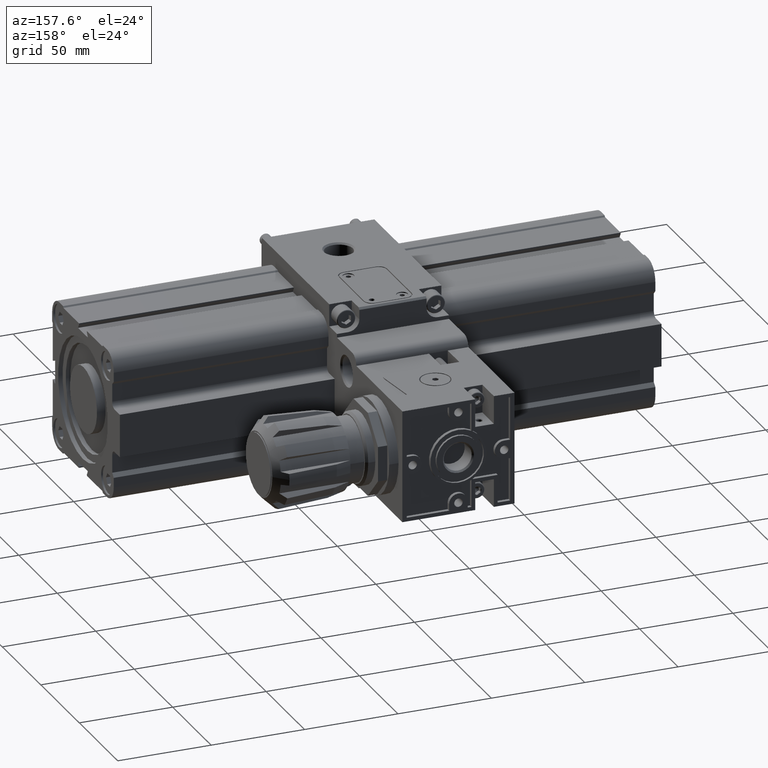
[diagram: clean part render]
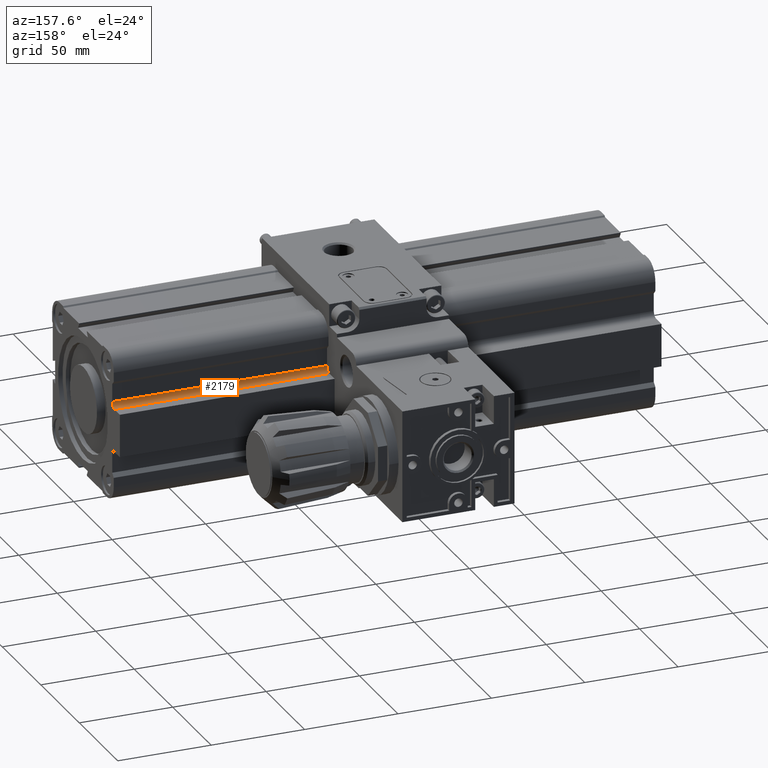
[diagram: same view with one face highlighted and labeled with its STEP entity id]
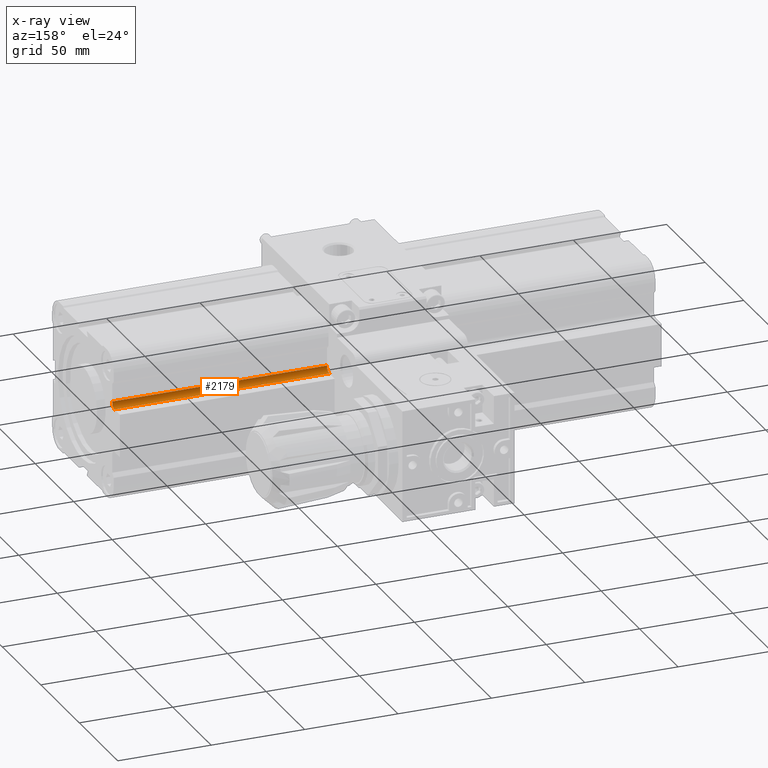
[diagram: x-ray of the same camera — body ghosted, the highlighted face saturated]
A machine part, auxiliary view. The second image highlights one B-rep face of the part: STEP entity #2179.
The next image is the same camera in x-ray: the body ghosted, the highlighted face saturated — about 0% of this face is hidden behind the body in this view.
In plain terms, the highlighted cylindrical surface (edge-blend (fillet) strip) has radius 3 mm, axis along (1, 0, 0).
Its self-contained STEP definition (entity closure, byte-faithful):
#2179 = ADVANCED_FACE( '', ( #4520 ), #4521, .F. );
#4520 = FACE_OUTER_BOUND( '', #6903, .T. );
#4521 = CYLINDRICAL_SURFACE( '', #6904, 3.00000000000000 );
#6903 = EDGE_LOOP( '', ( #12585, #12586, #12587, #12588 ) );
#6904 = AXIS2_PLACEMENT_3D( '', #12589, #12590, #12591 );
#12585 = ORIENTED_EDGE( '', *, *, #14749, .F. );
#12586 = ORIENTED_EDGE( '', *, *, #14919, .F. );
#12587 = ORIENTED_EDGE( '', *, *, #14834, .T. );
#12588 = ORIENTED_EDGE( '', *, *, #15375, .T. );
#12589 = CARTESIAN_POINT( '', ( 145.000000000000, 41.0000000000000, 14.5000000000000 ) );
#12590 = DIRECTION( '', ( 1.00000000000000, -0.000000000000000, -0.000000000000000 ) );
#12591 = DIRECTION( '', ( 0.000000000000000, 0.000000000000000, 1.00000000000000 ) );
#14749 = EDGE_CURVE( '', #18000, #18002, #18003, .T. );
#14834 = EDGE_CURVE( '', #18140, #18138, #18141, .T. );
#14919 = EDGE_CURVE( '', #18140, #18000, #18252, .T. );
#15375 = EDGE_CURVE( '', #18138, #18002, #18807, .T. );
#18000 = VERTEX_POINT( '', #22412 );
#18002 = VERTEX_POINT( '', #22415 );
#18003 = CIRCLE( '', #22416, 3.00000000000000 );
#18138 = VERTEX_POINT( '', #22604 );
#18140 = VERTEX_POINT( '', #22607 );
#18141 = CIRCLE( '', #22608, 3.00000000000000 );
#18252 = LINE( '', #22760, #22761 );
#18807 = LINE( '', #23538, #23539 );
#22412 = CARTESIAN_POINT( '', ( 30.0000000000000, 38.0000000000000, 14.5000000000000 ) );
#22415 = CARTESIAN_POINT( '', ( 30.0000000000000, 41.0000000000000, 11.5000000000000 ) );
#22416 = AXIS2_PLACEMENT_3D( '', #25440, #25441, #25442 );
#22604 = CARTESIAN_POINT( '', ( 145.000000000000, 41.0000000000000, 11.5000000000000 ) );
#22607 = CARTESIAN_POINT( '', ( 145.000000000000, 38.0000000000000, 14.5000000000000 ) );
#22608 = AXIS2_PLACEMENT_3D( '', #25581, #25582, #25583 );
#22760 = CARTESIAN_POINT( '', ( 145.000000000000, 38.0000000000000, 14.5000000000000 ) );
#22761 = VECTOR( '', #25670, 1000.00000000000 );
#23538 = CARTESIAN_POINT( '', ( 145.000000000000, 41.0000000000000, 11.5000000000000 ) );
#23539 = VECTOR( '', #26064, 1000.00000000000 );
#25440 = CARTESIAN_POINT( '', ( 30.0000000000000, 41.0000000000000, 14.5000000000000 ) );
#25441 = DIRECTION( '', ( 1.00000000000000, 0.000000000000000, 0.000000000000000 ) );
#25442 = DIRECTION( '', ( 0.000000000000000, 0.000000000000000, -1.00000000000000 ) );
#25581 = CARTESIAN_POINT( '', ( 145.000000000000, 41.0000000000000, 14.5000000000000 ) );
#25582 = DIRECTION( '', ( 1.00000000000000, 0.000000000000000, 0.000000000000000 ) );
#25583 = DIRECTION( '', ( 0.000000000000000, 0.000000000000000, -1.00000000000000 ) );
#25670 = DIRECTION( '', ( -1.00000000000000, -0.000000000000000, -0.000000000000000 ) );
#26064 = DIRECTION( '', ( -1.00000000000000, -0.000000000000000, -0.000000000000000 ) );